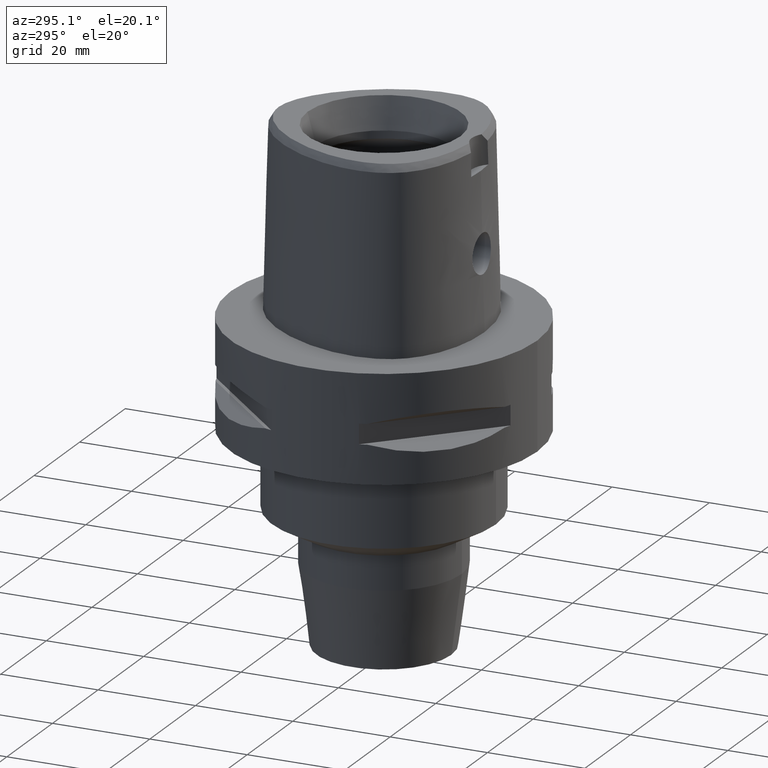
[diagram: clean part render]
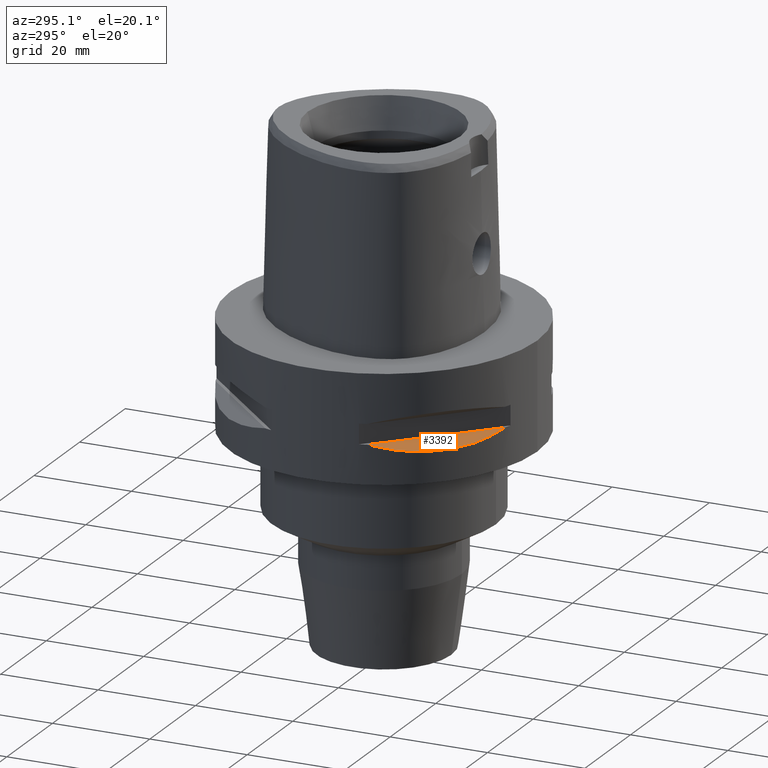
[diagram: same view with one face highlighted and labeled with its STEP entity id]
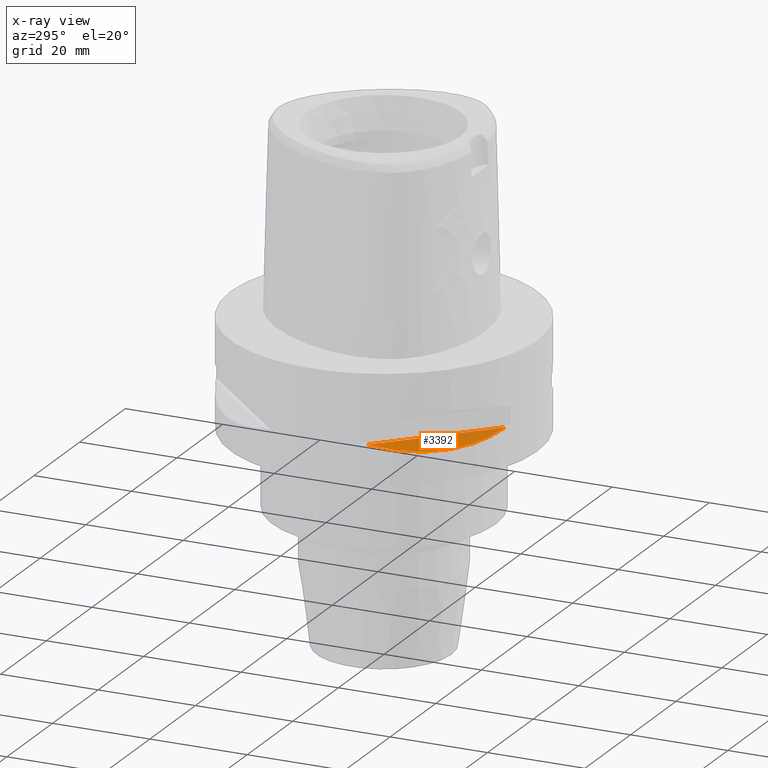
[diagram: x-ray of the same camera — body ghosted, the highlighted face saturated]
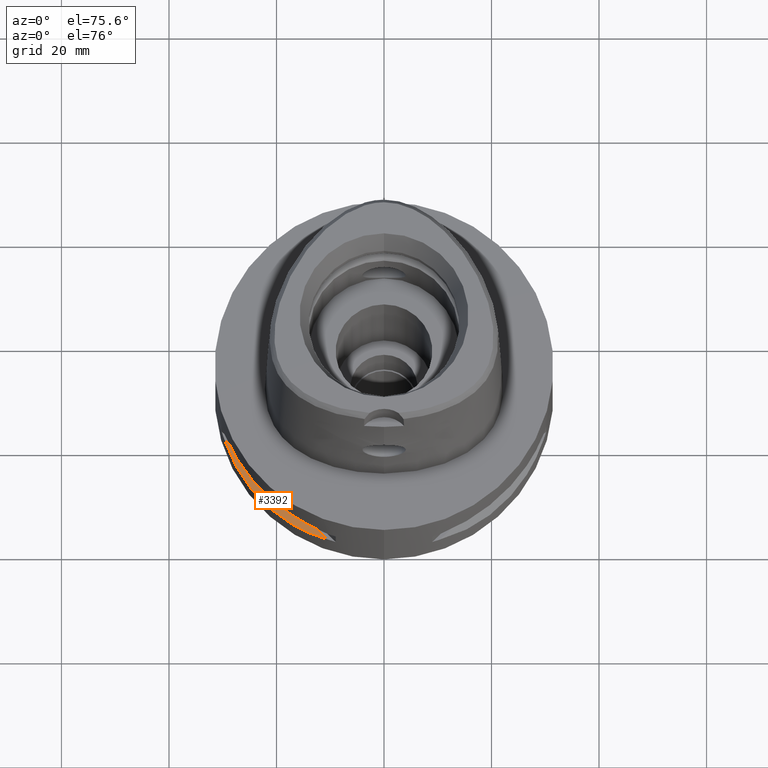
[diagram: same view with one face highlighted and labeled with its STEP entity id]
A machine part, auxiliary view. The second image highlights one B-rep face of the part: STEP entity #3392.
The next image is the same camera in x-ray: the body ghosted, the highlighted face saturated — about 0% of this face is hidden behind the body in this view.
A second angle (auxiliary view) of the same face is appended — the face is thin or edge-on in the first view.
In plain terms, the highlighted planar face has unit normal (0.3536, 0.3536, -0.866).
Its self-contained STEP definition (entity closure, byte-faithful):
#446=CARTESIAN_POINT('',(-2.971690375018E1,-1.044775724750E1,-1.405E1));
#447=CARTESIAN_POINT('',(-2.888151197365E1,-1.282388988809E1,
-1.467900482380E1));
#448=CARTESIAN_POINT('',(-2.674739463903E1,-1.711282138769E1,
-1.555870402292E1));
#449=CARTESIAN_POINT('',(-2.244574140438E1,-2.244574140438E1,
-1.597971692370E1));
#450=CARTESIAN_POINT('',(-1.711282138769E1,-2.674739463903E1,
-1.555870402292E1));
#451=CARTESIAN_POINT('',(-1.282388988809E1,-2.888151197365E1,
-1.467900482380E1));
#452=CARTESIAN_POINT('',(-1.044775724750E1,-2.971690375018E1,-1.405E1));
#1511=DIRECTION('',(7.071067811865E-1,-7.071067811865E-1,0.E0));
#1512=VECTOR('',#1511,2.725068831944E1);
#1513=CARTESIAN_POINT('',(-2.971690375018E1,-1.044775724750E1,-1.405E1));
#1514=LINE('',#1513,#1512);
#1571=CARTESIAN_POINT('',(-2.971690375018E1,-1.044775724750E1,-1.405E1));
#1572=VERTEX_POINT('',#1571);
#1573=VERTEX_POINT('',#452);
#3383=CARTESIAN_POINT('',(-5.940194875108E0,-3.422446612257E1,-1.405E1));
#3384=DIRECTION('',(3.535533905933E-1,3.535533905933E-1,-8.660254037844E-1));
#3385=DIRECTION('',(-6.123724356958E-1,-6.123724356958E-1,-5.E-1));
#3386=AXIS2_PLACEMENT_3D('',#3383,#3384,#3385);
#3387=PLANE('',#3386);
#3388=ORIENTED_EDGE('',*,*,#2419,.F.);
#3389=ORIENTED_EDGE('',*,*,#3376,.T.);
#3390=EDGE_LOOP('',(#3388,#3389));
#3391=FACE_OUTER_BOUND('',#3390,.F.);
#453=B_SPLINE_CURVE_WITH_KNOTS('',3,(#446,#447,#448,#449,#450,#451,#452),
.UNSPECIFIED.,.F.,.F.,(4,1,1,1,4),(0.E0,2.5E-1,5.E-1,7.5E-1,1.E0),
.UNSPECIFIED.);
#2419=EDGE_CURVE('',#1572,#1573,#453,.T.);
#3376=EDGE_CURVE('',#1572,#1573,#1514,.T.);
#3392=ADVANCED_FACE('',(#3391),#3387,.F.);